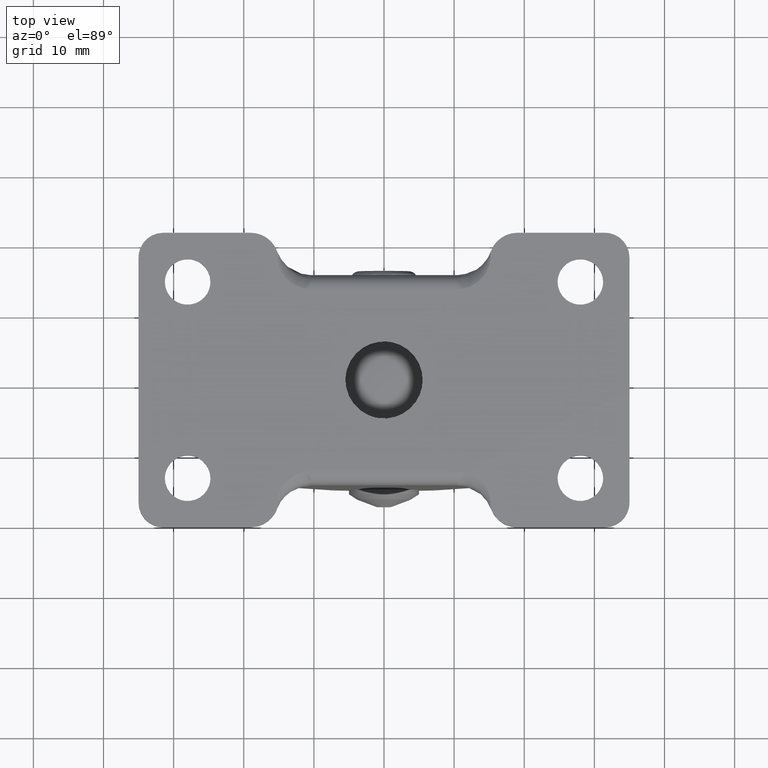
[diagram: clean part render]
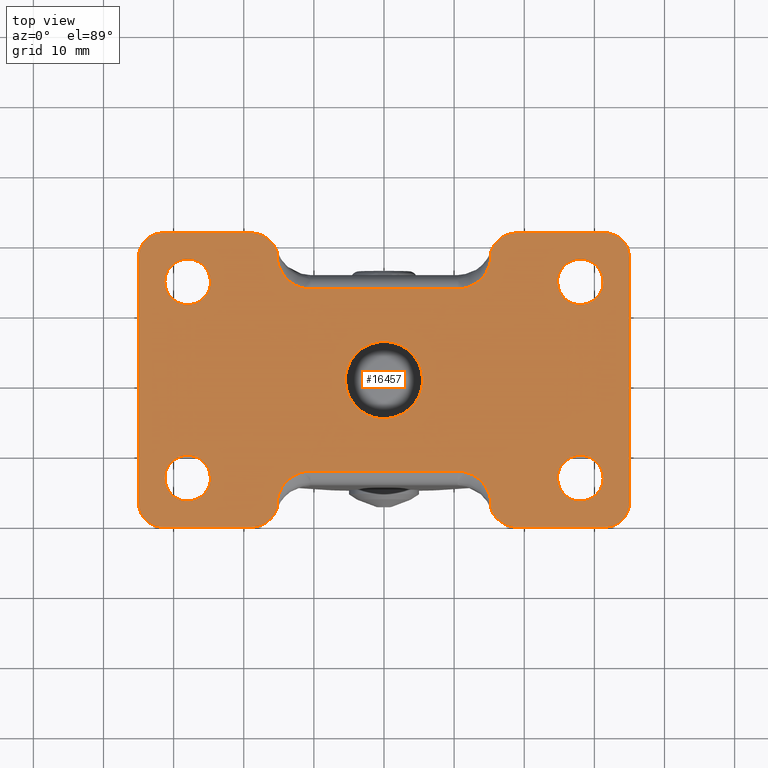
[diagram: same view with one face highlighted and labeled with its STEP entity id]
A machine part, top view. The second image highlights one B-rep face of the part: STEP entity #16457.
In plain terms, the highlighted face is a freeform B-spline surface patch.
Its self-contained STEP definition (entity closure, byte-faithful):
#11022=CARTESIAN_POINT('',(-28.383611263007861,10.772719039362290,54.500000000000000));
#11023=VERTEX_POINT('',#11022);
#11029=CARTESIAN_POINT('',(-24.750000000000000,13.999999999999821,54.500000000000000));
#11030=VERTEX_POINT('',#11029);
#11031=CARTESIAN_POINT('',(-28.383611263007857,10.772719039362284,54.500000000000000));
#11032=CARTESIAN_POINT('',(-28.192478389246045,10.749999999999819,54.500000000000007));
#11033=CARTESIAN_POINT('',(-28.0,10.749999999999821,54.500000000000000));
#11034=CARTESIAN_POINT('',(-24.750000000000000,10.749999999999821,54.500000000000000));
#11035=CARTESIAN_POINT('',(-24.750000000000000,13.999999999999821,54.500000000000000));
#11043=(BOUNDED_CURVE()B_SPLINE_CURVE(2,(#11031,#11032,#11033,#11034,#11035),.UNSPECIFIED.,.F.,.U.)B_SPLINE_CURVE_WITH_KNOTS((3,2,3),(0.229562473476538,0.250000000000000,0.500000000000000),.UNSPECIFIED.)CURVE()GEOMETRIC_REPRESENTATION_ITEM()RATIONAL_B_SPLINE_CURVE((0.956026754111235,0.976055948287831,1.0,0.707106781186547,1.0))REPRESENTATION_ITEM(''));
#11044=EDGE_CURVE('',#11023,#11030,#11043,.T.);
#11046=CARTESIAN_POINT('',(-27.801592246378259,17.243938094862731,54.499999999999993));
#11047=VERTEX_POINT('',#11046);
#11048=CARTESIAN_POINT('',(-24.750000000000000,13.999999999999821,54.500000000000000));
#11049=CARTESIAN_POINT('',(-24.750000000000004,17.057294717191322,54.500000000000014));
#11050=CARTESIAN_POINT('',(-27.801592246378263,17.243938094862724,54.499999999999986));
#11058=(BOUNDED_CURVE()B_SPLINE_CURVE(2,(#11048,#11049,#11050),.UNSPECIFIED.,.F.,.U.)B_SPLINE_CURVE_WITH_KNOTS((3,3),(0.500000000000000,0.739332962227772),.UNSPECIFIED.)CURVE()GEOMETRIC_REPRESENTATION_ITEM()RATIONAL_B_SPLINE_CURVE((1.0,0.719603993299798,0.976072041642776))REPRESENTATION_ITEM(''));
#11059=EDGE_CURVE('',#11030,#11047,#11058,.T.);
#11133=CARTESIAN_POINT('',(-31.250000000000000,13.999999999999821,54.500000000000000));
#11134=VERTEX_POINT('',#11133);
#11135=CARTESIAN_POINT('',(-27.801592246378259,17.243938094862727,54.500000000000000));
#11136=CARTESIAN_POINT('',(-27.900703519145754,17.249999999999819,54.500000000000000));
#11137=CARTESIAN_POINT('',(-28.0,17.249999999999819,54.500000000000000));
#11138=CARTESIAN_POINT('',(-31.250000000000004,17.249999999999826,54.500000000000000));
#11139=CARTESIAN_POINT('',(-31.250000000000000,13.999999999999821,54.500000000000000));
#11147=(BOUNDED_CURVE()B_SPLINE_CURVE(2,(#11135,#11136,#11137,#11138,#11139),.UNSPECIFIED.,.F.,.U.)B_SPLINE_CURVE_WITH_KNOTS((3,2,3),(0.739332962227771,0.750000000000000,1.0),.UNSPECIFIED.)CURVE()GEOMETRIC_REPRESENTATION_ITEM()RATIONAL_B_SPLINE_CURVE((0.976072041642775,0.987502787886749,1.0,0.707106781186547,1.0))REPRESENTATION_ITEM(''));
#11148=EDGE_CURVE('',#11047,#11134,#11147,.T.);
#11150=CARTESIAN_POINT('',(-31.250000000000000,13.999999999999821,54.500000000000000));
#11151=CARTESIAN_POINT('',(-31.250000000000004,11.113432791330514,54.500000000000007));
#11152=CARTESIAN_POINT('',(-28.383611263007857,10.772719039362283,54.500000000000000));
#11160=(BOUNDED_CURVE()B_SPLINE_CURVE(2,(#11150,#11151,#11152),.UNSPECIFIED.,.F.,.U.)B_SPLINE_CURVE_WITH_KNOTS((3,3),(0.0,0.229562473476538),.UNSPECIFIED.)CURVE()GEOMETRIC_REPRESENTATION_ITEM()RATIONAL_B_SPLINE_CURVE((1.0,0.731050832898716,0.956026754111236))REPRESENTATION_ITEM(''));
#11161=EDGE_CURVE('',#11134,#11023,#11160,.T.);
#11208=CARTESIAN_POINT('',(-0.649186825423590,-5.461552569159640,54.500000000000000));
#11209=VERTEX_POINT('',#11208);
#11215=CARTESIAN_POINT('',(5.500000000000000,0.0,54.500000000000000));
#11216=VERTEX_POINT('',#11215);
#11217=CARTESIAN_POINT('',(-0.649186825423590,-5.461552569159640,54.500000000000000));
#11218=CARTESIAN_POINT('',(-0.325731917746351,-5.500000000000000,54.500000000000007));
#11219=CARTESIAN_POINT('',(0.0,-5.500000000000000,54.500000000000000));
#11220=CARTESIAN_POINT('',(5.500000000000001,-5.500000000000001,54.500000000000014));
#11221=CARTESIAN_POINT('',(5.500000000000000,0.0,54.500000000000000));
#11229=(BOUNDED_CURVE()B_SPLINE_CURVE(2,(#11217,#11218,#11219,#11220,#11221),.UNSPECIFIED.,.F.,.U.)B_SPLINE_CURVE_WITH_KNOTS((3,2,3),(0.229562518854701,0.250000000000000,0.500000000000000),.UNSPECIFIED.)CURVE()GEOMETRIC_REPRESENTATION_ITEM()RATIONAL_B_SPLINE_CURVE((0.956026843054312,0.976056001451657,1.0,0.707106781186548,1.0))REPRESENTATION_ITEM(''));
#11230=EDGE_CURVE('',#11209,#11216,#11229,.T.);
#11232=CARTESIAN_POINT('',(0.335766967672044,5.489741391306180,54.500000000000000));
#11233=VERTEX_POINT('',#11232);
#11234=CARTESIAN_POINT('',(5.500000000000000,0.0,54.500000000000000));
#11235=CARTESIAN_POINT('',(5.500000000000000,5.173883367546367,54.500000000000000));
#11236=CARTESIAN_POINT('',(0.335766967672044,5.489741391306181,54.500000000000000));
#11244=(BOUNDED_CURVE()B_SPLINE_CURVE(2,(#11234,#11235,#11236),.UNSPECIFIED.,.F.,.U.)B_SPLINE_CURVE_WITH_KNOTS((3,3),(0.500000000000000,0.739332962227490),.UNSPECIFIED.)CURVE()GEOMETRIC_REPRESENTATION_ITEM()RATIONAL_B_SPLINE_CURVE((1.0,0.719603993300128,0.976072041642172))REPRESENTATION_ITEM(''));
#11245=EDGE_CURVE('',#11216,#11233,#11244,.T.);
#11319=CARTESIAN_POINT('',(-5.500000000000000,0.0,54.500000000000000));
#11320=VERTEX_POINT('',#11319);
#11321=CARTESIAN_POINT('',(0.335766967672044,5.489741391306180,54.499999999999993));
#11322=CARTESIAN_POINT('',(0.168040198373216,5.500000000000001,54.500000000000000));
#11323=CARTESIAN_POINT('',(0.0,5.500000000000000,54.500000000000000));
#11324=CARTESIAN_POINT('',(-5.500000000000001,5.500000000000001,54.500000000000014));
#11325=CARTESIAN_POINT('',(-5.500000000000000,0.0,54.500000000000000));
#11333=(BOUNDED_CURVE()B_SPLINE_CURVE(2,(#11321,#11322,#11323,#11324,#11325),.UNSPECIFIED.,.F.,.U.)B_SPLINE_CURVE_WITH_KNOTS((3,2,3),(0.739332962227489,0.750000000000000,1.0),.UNSPECIFIED.)CURVE()GEOMETRIC_REPRESENTATION_ITEM()RATIONAL_B_SPLINE_CURVE((0.976072041642171,0.987502787886419,1.0,0.707106781186548,1.0))REPRESENTATION_ITEM(''));
#11334=EDGE_CURVE('',#11233,#11320,#11333,.T.);
#11336=CARTESIAN_POINT('',(-5.500000000000000,0.0,54.500000000000000));
#11337=CARTESIAN_POINT('',(-5.500000000000001,-4.884961212462393,54.500000000000000));
#11338=CARTESIAN_POINT('',(-0.649186825423590,-5.461552569159640,54.500000000000000));
#11346=(BOUNDED_CURVE()B_SPLINE_CURVE(2,(#11336,#11337,#11338),.UNSPECIFIED.,.F.,.U.)B_SPLINE_CURVE_WITH_KNOTS((3,3),(0.0,0.229562518854701),.UNSPECIFIED.)CURVE()GEOMETRIC_REPRESENTATION_ITEM()RATIONAL_B_SPLINE_CURVE((1.0,0.731050779734891,0.956026843054312))REPRESENTATION_ITEM(''));
#11347=EDGE_CURVE('',#11320,#11209,#11346,.T.);
#11394=CARTESIAN_POINT('',(27.616388736992150,10.772719039362290,54.500000000000000));
#11395=VERTEX_POINT('',#11394);
#11401=CARTESIAN_POINT('',(31.250000000000000,13.999999999999821,54.500000000000000));
#11402=VERTEX_POINT('',#11401);
#11403=CARTESIAN_POINT('',(27.616388736992150,10.772719039362288,54.500000000000000));
#11404=CARTESIAN_POINT('',(27.807521610753962,10.749999999999815,54.500000000000007));
#11405=CARTESIAN_POINT('',(28.0,10.749999999999821,54.500000000000000));
#11406=CARTESIAN_POINT('',(31.250000000000004,10.749999999999821,54.500000000000000));
#11407=CARTESIAN_POINT('',(31.250000000000000,13.999999999999821,54.500000000000000));
#11415=(BOUNDED_CURVE()B_SPLINE_CURVE(2,(#11403,#11404,#11405,#11406,#11407),.UNSPECIFIED.,.F.,.U.)B_SPLINE_CURVE_WITH_KNOTS((3,2,3),(0.229562473476538,0.250000000000000,0.500000000000000),.UNSPECIFIED.)CURVE()GEOMETRIC_REPRESENTATION_ITEM()RATIONAL_B_SPLINE_CURVE((0.956026754111236,0.976055948287832,1.0,0.707106781186547,1.0))REPRESENTATION_ITEM(''));
#11416=EDGE_CURVE('',#11395,#11402,#11415,.T.);
#11418=CARTESIAN_POINT('',(28.198407753621741,17.243938094862731,54.500000000000000));
#11419=VERTEX_POINT('',#11418);
#11420=CARTESIAN_POINT('',(31.250000000000000,13.999999999999821,54.500000000000000));
#11421=CARTESIAN_POINT('',(31.249999999999993,17.057294717191322,54.500000000000014));
#11422=CARTESIAN_POINT('',(28.198407753621744,17.243938094862724,54.500000000000000));
#11430=(BOUNDED_CURVE()B_SPLINE_CURVE(2,(#11420,#11421,#11422),.UNSPECIFIED.,.F.,.U.)B_SPLINE_CURVE_WITH_KNOTS((3,3),(0.500000000000000,0.739332962227772),.UNSPECIFIED.)CURVE()GEOMETRIC_REPRESENTATION_ITEM()RATIONAL_B_SPLINE_CURVE((1.0,0.719603993299798,0.976072041642776))REPRESENTATION_ITEM(''));
#11431=EDGE_CURVE('',#11402,#11419,#11430,.T.);
#11505=CARTESIAN_POINT('',(24.750000000000000,13.999999999999821,54.500000000000000));
#11506=VERTEX_POINT('',#11505);
#11507=CARTESIAN_POINT('',(28.198407753621744,17.243938094862731,54.500000000000000));
#11508=CARTESIAN_POINT('',(28.099296480854242,17.249999999999822,54.500000000000000));
#11509=CARTESIAN_POINT('',(28.0,17.249999999999819,54.500000000000000));
#11510=CARTESIAN_POINT('',(24.750000000000000,17.249999999999826,54.500000000000000));
#11511=CARTESIAN_POINT('',(24.750000000000000,13.999999999999821,54.500000000000000));
#11519=(BOUNDED_CURVE()B_SPLINE_CURVE(2,(#11507,#11508,#11509,#11510,#11511),.UNSPECIFIED.,.F.,.U.)B_SPLINE_CURVE_WITH_KNOTS((3,2,3),(0.739332962227771,0.750000000000000,1.0),.UNSPECIFIED.)CURVE()GEOMETRIC_REPRESENTATION_ITEM()RATIONAL_B_SPLINE_CURVE((0.976072041642774,0.987502787886749,1.0,0.707106781186547,1.0))REPRESENTATION_ITEM(''));
#11520=EDGE_CURVE('',#11419,#11506,#11519,.T.);
#11522=CARTESIAN_POINT('',(24.750000000000000,13.999999999999821,54.500000000000000));
#11523=CARTESIAN_POINT('',(24.750000000000004,11.113432791330514,54.500000000000007));
#11524=CARTESIAN_POINT('',(27.616388736992146,10.772719039362292,54.499999999999993));
#11532=(BOUNDED_CURVE()B_SPLINE_CURVE(2,(#11522,#11523,#11524),.UNSPECIFIED.,.F.,.U.)B_SPLINE_CURVE_WITH_KNOTS((3,3),(0.0,0.229562473476538),.UNSPECIFIED.)CURVE()GEOMETRIC_REPRESENTATION_ITEM()RATIONAL_B_SPLINE_CURVE((1.0,0.731050832898716,0.956026754111236))REPRESENTATION_ITEM(''));
#11533=EDGE_CURVE('',#11506,#11395,#11532,.T.);
#11580=CARTESIAN_POINT('',(27.616388736992150,-17.227280960637529,54.500000000000000));
#11581=VERTEX_POINT('',#11580);
#11587=CARTESIAN_POINT('',(31.250000000000000,-14.0,54.500000000000000));
#11588=VERTEX_POINT('',#11587);
#11589=CARTESIAN_POINT('',(27.616388736992150,-17.227280960637533,54.500000000000000));
#11590=CARTESIAN_POINT('',(27.807521610753966,-17.250000000000000,54.499999999999993));
#11591=CARTESIAN_POINT('',(28.0,-17.250000000000000,54.500000000000000));
#11592=CARTESIAN_POINT('',(31.250000000000004,-17.249999999999996,54.500000000000000));
#11593=CARTESIAN_POINT('',(31.250000000000000,-14.0,54.500000000000000));
#11601=(BOUNDED_CURVE()B_SPLINE_CURVE(2,(#11589,#11590,#11591,#11592,#11593),.UNSPECIFIED.,.F.,.U.)B_SPLINE_CURVE_WITH_KNOTS((3,2,3),(0.229562473476538,0.250000000000000,0.500000000000000),.UNSPECIFIED.)CURVE()GEOMETRIC_REPRESENTATION_ITEM()RATIONAL_B_SPLINE_CURVE((0.956026754111236,0.976055948287832,1.0,0.707106781186547,1.0))REPRESENTATION_ITEM(''));
#11602=EDGE_CURVE('',#11581,#11588,#11601,.T.);
#11604=CARTESIAN_POINT('',(28.198407753621741,-10.756061905137100,54.500000000000000));
#11605=VERTEX_POINT('',#11604);
#11606=CARTESIAN_POINT('',(31.250000000000000,-14.0,54.500000000000000));
#11607=CARTESIAN_POINT('',(31.249999999999993,-10.942705282808506,54.500000000000014));
#11608=CARTESIAN_POINT('',(28.198407753621744,-10.756061905137095,54.500000000000000));
#11616=(BOUNDED_CURVE()B_SPLINE_CURVE(2,(#11606,#11607,#11608),.UNSPECIFIED.,.F.,.U.)B_SPLINE_CURVE_WITH_KNOTS((3,3),(0.500000000000000,0.739332962227772),.UNSPECIFIED.)CURVE()GEOMETRIC_REPRESENTATION_ITEM()RATIONAL_B_SPLINE_CURVE((1.0,0.719603993299798,0.976072041642776))REPRESENTATION_ITEM(''));
#11617=EDGE_CURVE('',#11588,#11605,#11616,.T.);
#11691=CARTESIAN_POINT('',(24.750000000000000,-14.0,54.500000000000000));
#11692=VERTEX_POINT('',#11691);
#11693=CARTESIAN_POINT('',(28.198407753621744,-10.756061905137093,54.500000000000000));
#11694=CARTESIAN_POINT('',(28.099296480854242,-10.750000000000002,54.500000000000000));
#11695=CARTESIAN_POINT('',(28.0,-10.750000000000000,54.500000000000000));
#11696=CARTESIAN_POINT('',(24.750000000000000,-10.750000000000000,54.500000000000000));
#11697=CARTESIAN_POINT('',(24.750000000000000,-14.0,54.500000000000000));
#11705=(BOUNDED_CURVE()B_SPLINE_CURVE(2,(#11693,#11694,#11695,#11696,#11697),.UNSPECIFIED.,.F.,.U.)B_SPLINE_CURVE_WITH_KNOTS((3,2,3),(0.739332962227771,0.750000000000000,1.0),.UNSPECIFIED.)CURVE()GEOMETRIC_REPRESENTATION_ITEM()RATIONAL_B_SPLINE_CURVE((0.976072041642774,0.987502787886749,1.0,0.707106781186547,1.0))REPRESENTATION_ITEM(''));
#11706=EDGE_CURVE('',#11605,#11692,#11705,.T.);
#11708=CARTESIAN_POINT('',(24.750000000000000,-14.0,54.500000000000000));
#11709=CARTESIAN_POINT('',(24.749999999999996,-16.886567208669312,54.499999999999993));
#11710=CARTESIAN_POINT('',(27.616388736992150,-17.227280960637533,54.500000000000000));
#11718=(BOUNDED_CURVE()B_SPLINE_CURVE(2,(#11708,#11709,#11710),.UNSPECIFIED.,.F.,.U.)B_SPLINE_CURVE_WITH_KNOTS((3,3),(0.0,0.229562473476538),.UNSPECIFIED.)CURVE()GEOMETRIC_REPRESENTATION_ITEM()RATIONAL_B_SPLINE_CURVE((1.0,0.731050832898716,0.956026754111236))REPRESENTATION_ITEM(''));
#11719=EDGE_CURVE('',#11692,#11581,#11718,.T.);
#11766=CARTESIAN_POINT('',(-28.383611263007861,-17.227280960637529,54.500000000000000));
#11767=VERTEX_POINT('',#11766);
#11773=CARTESIAN_POINT('',(-24.750000000000000,-14.0,54.500000000000000));
#11774=VERTEX_POINT('',#11773);
#11775=CARTESIAN_POINT('',(-28.383611263007857,-17.227280960637529,54.500000000000000));
#11776=CARTESIAN_POINT('',(-28.192478389246045,-17.250000000000000,54.499999999999993));
#11777=CARTESIAN_POINT('',(-28.0,-17.250000000000000,54.500000000000000));
#11778=CARTESIAN_POINT('',(-24.750000000000000,-17.249999999999996,54.500000000000000));
#11779=CARTESIAN_POINT('',(-24.750000000000000,-14.0,54.500000000000000));
#11787=(BOUNDED_CURVE()B_SPLINE_CURVE(2,(#11775,#11776,#11777,#11778,#11779),.UNSPECIFIED.,.F.,.U.)B_SPLINE_CURVE_WITH_KNOTS((3,2,3),(0.229562473476538,0.250000000000000,0.500000000000000),.UNSPECIFIED.)CURVE()GEOMETRIC_REPRESENTATION_ITEM()RATIONAL_B_SPLINE_CURVE((0.956026754111235,0.976055948287831,1.0,0.707106781186547,1.0))REPRESENTATION_ITEM(''));
#11788=EDGE_CURVE('',#11767,#11774,#11787,.T.);
#11790=CARTESIAN_POINT('',(-27.801592246378259,-10.756061905137100,54.499999999999993));
#11791=VERTEX_POINT('',#11790);
#11792=CARTESIAN_POINT('',(-24.750000000000000,-14.0,54.500000000000000));
#11793=CARTESIAN_POINT('',(-24.750000000000004,-10.942705282808506,54.500000000000014));
#11794=CARTESIAN_POINT('',(-27.801592246378263,-10.756061905137095,54.499999999999986));
#11802=(BOUNDED_CURVE()B_SPLINE_CURVE(2,(#11792,#11793,#11794),.UNSPECIFIED.,.F.,.U.)B_SPLINE_CURVE_WITH_KNOTS((3,3),(0.500000000000000,0.739332962227772),.UNSPECIFIED.)CURVE()GEOMETRIC_REPRESENTATION_ITEM()RATIONAL_B_SPLINE_CURVE((1.0,0.719603993299798,0.976072041642776))REPRESENTATION_ITEM(''));
#11803=EDGE_CURVE('',#11774,#11791,#11802,.T.);
#11877=CARTESIAN_POINT('',(-31.250000000000000,-14.0,54.500000000000000));
#11878=VERTEX_POINT('',#11877);
#11879=CARTESIAN_POINT('',(-27.801592246378259,-10.756061905137098,54.500000000000000));
#11880=CARTESIAN_POINT('',(-27.900703519145754,-10.750000000000000,54.500000000000000));
#11881=CARTESIAN_POINT('',(-28.0,-10.750000000000000,54.500000000000000));
#11882=CARTESIAN_POINT('',(-31.250000000000004,-10.750000000000000,54.500000000000000));
#11883=CARTESIAN_POINT('',(-31.250000000000000,-14.0,54.500000000000000));
#11891=(BOUNDED_CURVE()B_SPLINE_CURVE(2,(#11879,#11880,#11881,#11882,#11883),.UNSPECIFIED.,.F.,.U.)B_SPLINE_CURVE_WITH_KNOTS((3,2,3),(0.739332962227771,0.750000000000000,1.0),.UNSPECIFIED.)CURVE()GEOMETRIC_REPRESENTATION_ITEM()RATIONAL_B_SPLINE_CURVE((0.976072041642775,0.987502787886749,1.0,0.707106781186547,1.0))REPRESENTATION_ITEM(''));
#11892=EDGE_CURVE('',#11791,#11878,#11891,.T.);
#11894=CARTESIAN_POINT('',(-31.250000000000000,-14.0,54.500000000000000));
#11895=CARTESIAN_POINT('',(-31.250000000000004,-16.886567208669302,54.500000000000007));
#11896=CARTESIAN_POINT('',(-28.383611263007857,-17.227280960637536,54.500000000000000));
#11904=(BOUNDED_CURVE()B_SPLINE_CURVE(2,(#11894,#11895,#11896),.UNSPECIFIED.,.F.,.U.)B_SPLINE_CURVE_WITH_KNOTS((3,3),(0.0,0.229562473476538),.UNSPECIFIED.)CURVE()GEOMETRIC_REPRESENTATION_ITEM()RATIONAL_B_SPLINE_CURVE((1.0,0.731050832898716,0.956026754111236))REPRESENTATION_ITEM(''));
#11905=EDGE_CURVE('',#11878,#11767,#11904,.T.);
#13661=CARTESIAN_POINT('',(-15.228765913306200,18.333339215413350,54.500000000000000));
#13662=VERTEX_POINT('',#13661);
#13690=CARTESIAN_POINT('',(-10.514711081367540,13.0,54.500000000000000));
#13691=VERTEX_POINT('',#13690);
#13692=CARTESIAN_POINT('',(-10.514711081367540,13.0,54.500000000000000));
#13693=CARTESIAN_POINT('',(-11.581971825455341,13.000214138864351,54.500000000000000));
#13694=CARTESIAN_POINT('',(-12.580773533342651,13.499428649971261,54.500000000000000));
#13695=CARTESIAN_POINT('',(-13.540841397550929,13.979283465672310,54.500000000000000));
#13696=CARTESIAN_POINT('',(-14.195327010071420,14.794834309048600,54.500000000000000));
#13697=CARTESIAN_POINT('',(-14.810590144845690,15.561510243346190,54.500000000000000));
#13698=CARTESIAN_POINT('',(-15.079617698688660,16.539096097954811,54.500000000000000));
#13699=CARTESIAN_POINT('',(-15.329726715057991,17.447936226112748,54.500000000000000));
#13700=CARTESIAN_POINT('',(-15.228765913306200,18.333339215413350,54.500000000000000));
#13701=B_SPLINE_CURVE_WITH_KNOTS('',2,(#13692,#13693,#13694,#13695,#13696,#13697,#13698,#13699,#13700),.UNSPECIFIED.,.F.,.U.,(3,2,2,2,3),(0.0,0.250000000000000,0.500000000000000,0.750000000000000,1.0),.UNSPECIFIED.);
#13702=EDGE_CURVE('',#13691,#13662,#13701,.T.);
#13730=CARTESIAN_POINT('',(10.514709999999999,13.0,54.500000000000000));
#13731=VERTEX_POINT('',#13730);
#13753=CARTESIAN_POINT('',(10.514709999999999,13.0,54.500000000000000));
#13754=CARTESIAN_POINT('',(-10.514711081367540,13.0,54.500000000000000));
#13755=QUASI_UNIFORM_CURVE('',1,(#13753,#13754),.UNSPECIFIED.,.F.,.U.);
#13756=EDGE_CURVE('',#13731,#13691,#13755,.T.);
#13787=CARTESIAN_POINT('',(15.228760706250251,18.333348183459801,54.500000000000000));
#13788=VERTEX_POINT('',#13787);
#13789=CARTESIAN_POINT('',(15.228760706250251,18.333348183459801,54.500000000000000));
#13790=CARTESIAN_POINT('',(15.329635687253081,17.448708875707322,54.500000000000007));
#13791=CARTESIAN_POINT('',(15.079614982359850,16.539104090093200,54.500000000000000));
#13792=CARTESIAN_POINT('',(14.811309808526740,15.562978251923850,54.500000000000000));
#13793=CARTESIAN_POINT('',(14.195326207737100,14.794840124324359,54.500000000000000));
#13794=CARTESIAN_POINT('',(13.542195608990760,13.980379293620720,54.500000000000000));
#13795=CARTESIAN_POINT('',(12.580773310062300,13.499431567280499,54.500000000000000));
#13796=CARTESIAN_POINT('',(11.582832560932880,13.000215629756520,54.500000000000000));
#13797=CARTESIAN_POINT('',(10.514709999999999,13.0,54.500000000000000));
#13798=B_SPLINE_CURVE_WITH_KNOTS('',2,(#13789,#13790,#13791,#13792,#13793,#13794,#13795,#13796,#13797),.UNSPECIFIED.,.F.,.U.,(3,2,2,2,3),(0.000000014380785,0.250000000000000,0.500000000000000,0.750000000000000,1.0),.UNSPECIFIED.);
#13799=EDGE_CURVE('',#13788,#13731,#13798,.T.);
#13855=CARTESIAN_POINT('',(-10.514711081367521,-13.0,54.500000000000000));
#13856=VERTEX_POINT('',#13855);
#13866=CARTESIAN_POINT('',(-15.228764935478599,-18.333332562780399,54.500000000000000));
#13867=VERTEX_POINT('',#13866);
#13868=CARTESIAN_POINT('',(-15.228764935478599,-18.333332562780399,54.500000000000000));
#13869=CARTESIAN_POINT('',(-15.329637651343401,-17.448694153979350,54.500000000000000));
#13870=CARTESIAN_POINT('',(-15.079615267566449,-16.539091237617800,54.500000000000000));
#13871=CARTESIAN_POINT('',(-14.811308303795320,-15.562967448061100,54.500000000000000));
#13872=CARTESIAN_POINT('',(-14.195324224741700,-14.794831651059340,54.500000000000000));
#13873=CARTESIAN_POINT('',(-13.542193115301000,-13.980373287025619,54.500000000000000));
#13874=CARTESIAN_POINT('',(-12.580771690475119,-13.499427844222479,54.500000000000000));
#13875=CARTESIAN_POINT('',(-11.582831831504880,-13.000214268396180,54.500000000000000));
#13876=CARTESIAN_POINT('',(-10.514711081367521,-13.0,54.500000000000000));
#13877=B_SPLINE_CURVE_WITH_KNOTS('',2,(#13868,#13869,#13870,#13871,#13872,#13873,#13874,#13875,#13876),.UNSPECIFIED.,.F.,.U.,(3,2,2,2,3),(0.0,0.250000000000000,0.500000000000000,0.750000000000000,1.0),.UNSPECIFIED.);
#13878=EDGE_CURVE('',#13867,#13856,#13877,.T.);
#13921=CARTESIAN_POINT('',(10.514709999999999,-13.0,54.500000000000000));
#13922=VERTEX_POINT('',#13921);
#13936=CARTESIAN_POINT('',(-10.514711081367521,-13.0,54.500000000000000));
#13937=CARTESIAN_POINT('',(10.514709999999999,-13.0,54.500000000000000));
#13938=QUASI_UNIFORM_CURVE('',1,(#13936,#13937),.UNSPECIFIED.,.F.,.U.);
#13939=EDGE_CURVE('',#13856,#13922,#13938,.T.);
#13976=CARTESIAN_POINT('',(15.228760485757951,-18.333348261415651,54.500000000000000));
#13977=VERTEX_POINT('',#13976);
#14003=CARTESIAN_POINT('',(10.514709999999999,-13.0,54.500000000000000));
#14004=CARTESIAN_POINT('',(11.581971513306099,-13.000215455932620,54.500000000000000));
#14005=CARTESIAN_POINT('',(12.580773310062540,-13.499431567280720,54.500000000000000));
#14006=CARTESIAN_POINT('',(13.540841265657040,-13.979287924145799,54.500000000000000));
#14007=CARTESIAN_POINT('',(14.195326207737541,-14.794840124324679,54.500000000000000));
#14008=CARTESIAN_POINT('',(14.810588713461300,-15.561517335622350,54.500000000000000));
#14009=CARTESIAN_POINT('',(15.079614982360299,-16.539104090093801,54.500000000000000));
#14010=CARTESIAN_POINT('',(15.329722805398101,-17.447945059386949,54.500000000000000));
#14011=CARTESIAN_POINT('',(15.228760485757951,-18.333348261415651,54.500000000000000));
#14012=B_SPLINE_CURVE_WITH_KNOTS('',2,(#14003,#14004,#14005,#14006,#14007,#14008,#14009,#14010,#14011),.UNSPECIFIED.,.F.,.U.,(3,2,2,2,3),(0.0,0.250000000000000,0.500000000000000,0.750000000000000,1.0),.UNSPECIFIED.);
#14013=EDGE_CURVE('',#13922,#13977,#14012,.T.);
#15336=CARTESIAN_POINT('',(18.989575114206499,-21.0,54.500000000000000));
#15337=VERTEX_POINT('',#15336);
#15343=CARTESIAN_POINT('',(15.228760485757951,-18.333348261415651,54.500000000000000));
#15344=CARTESIAN_POINT('',(16.168967375558246,-20.992651369762061,54.499999999999993));
#15345=CARTESIAN_POINT('',(18.989575114206499,-21.0,54.500000000000000));
#15353=(BOUNDED_CURVE()B_SPLINE_CURVE(2,(#15343,#15344,#15345),.UNSPECIFIED.,.F.,.U.)CURVE()GEOMETRIC_REPRESENTATION_ITEM()QUASI_UNIFORM_CURVE()RATIONAL_B_SPLINE_CURVE((1.0,0.817248079286618,1.0))REPRESENTATION_ITEM(''));
#15354=EDGE_CURVE('',#13977,#15337,#15353,.T.);
#15373=CARTESIAN_POINT('',(-19.0,-21.0,54.500000000000000));
#15374=VERTEX_POINT('',#15373);
#15382=CARTESIAN_POINT('',(-19.0,-21.0,54.500000000000000));
#15383=CARTESIAN_POINT('',(-16.171573216614878,-20.999999784059309,54.500000000000000));
#15384=CARTESIAN_POINT('',(-15.228764935478599,-18.333332562780399,54.500000000000000));
#15392=(BOUNDED_CURVE()B_SPLINE_CURVE(2,(#15382,#15383,#15384),.UNSPECIFIED.,.F.,.U.)CURVE()GEOMETRIC_REPRESENTATION_ITEM()QUASI_UNIFORM_CURVE()RATIONAL_B_SPLINE_CURVE((1.0,0.816496555003584,1.0))REPRESENTATION_ITEM(''));
#15393=EDGE_CURVE('',#15374,#13867,#15392,.T.);
#15485=CARTESIAN_POINT('',(18.989575114143950,21.0,54.500000000000000));
#15486=VERTEX_POINT('',#15485);
#15487=CARTESIAN_POINT('',(18.989575114143950,20.999999999999979,54.500000000000000));
#15488=CARTESIAN_POINT('',(16.168967375542664,20.992651369717915,54.500000000000007));
#15489=CARTESIAN_POINT('',(15.228760706250270,18.333348183459790,54.500000000000000));
#15497=(BOUNDED_CURVE()B_SPLINE_CURVE(2,(#15487,#15488,#15489),.UNSPECIFIED.,.F.,.U.)CURVE()GEOMETRIC_REPRESENTATION_ITEM()QUASI_UNIFORM_CURVE()RATIONAL_B_SPLINE_CURVE((1.0,0.817248079291126,1.0))REPRESENTATION_ITEM(''));
#15498=EDGE_CURVE('',#15486,#13788,#15497,.T.);
#15524=CARTESIAN_POINT('',(-19.0,21.0,54.500000000000000));
#15525=VERTEX_POINT('',#15524);
#15531=CARTESIAN_POINT('',(-15.228765913306241,18.333339215413339,54.500000000000000));
#15532=CARTESIAN_POINT('',(-16.171577554418512,21.0,54.500000000000000));
#15533=CARTESIAN_POINT('',(-19.0,21.0,54.500000000000000));
#15541=(BOUNDED_CURVE()B_SPLINE_CURVE(2,(#15531,#15532,#15533),.UNSPECIFIED.,.F.,.U.)CURVE()GEOMETRIC_REPRESENTATION_ITEM()QUASI_UNIFORM_CURVE()RATIONAL_B_SPLINE_CURVE((1.0,0.816497031180559,1.0))REPRESENTATION_ITEM(''));
#15542=EDGE_CURVE('',#13662,#15525,#15541,.T.);
#15766=CARTESIAN_POINT('',(-31.500000000000000,-21.0,54.500000000000000));
#15767=VERTEX_POINT('',#15766);
#15768=CARTESIAN_POINT('',(-19.0,-21.0,54.500000000000000));
#15769=CARTESIAN_POINT('',(-31.500000000000000,-21.0,54.500000000000000));
#15770=QUASI_UNIFORM_CURVE('',1,(#15768,#15769),.UNSPECIFIED.,.F.,.U.);
#15771=EDGE_CURVE('',#15374,#15767,#15770,.T.);
#16027=CARTESIAN_POINT('',(-31.499998900442598,21.0,54.500000000000000));
#16028=VERTEX_POINT('',#16027);
#16035=CARTESIAN_POINT('',(-35.0,17.500000000000000,54.500000000000000));
#16036=VERTEX_POINT('',#16035);
#16042=CARTESIAN_POINT('',(-31.499998900442598,21.0,54.500000000000000));
#16043=CARTESIAN_POINT('',(-32.949746690801277,21.000000455451517,54.500000000000000));
#16044=CARTESIAN_POINT('',(-33.974873345400631,19.974874122905138,54.500000000000000));
#16045=CARTESIAN_POINT('',(-35.0,18.949747790358749,54.500000000000000));
#16046=CARTESIAN_POINT('',(-35.0,17.500000000000000,54.500000000000000));
#16054=(BOUNDED_CURVE()B_SPLINE_CURVE(2,(#16042,#16043,#16044,#16045,#16046),.UNSPECIFIED.,.F.,.U.)B_SPLINE_CURVE_WITH_KNOTS((3,2,3),(0.0,0.500000000000000,1.0),.UNSPECIFIED.)CURVE()GEOMETRIC_REPRESENTATION_ITEM()RATIONAL_B_SPLINE_CURVE((1.0,0.923879502455398,1.0,0.923879502455398,1.0))REPRESENTATION_ITEM(''));
#16055=EDGE_CURVE('',#16028,#16036,#16054,.T.);
#16074=CARTESIAN_POINT('',(-35.0,-17.499998778269600,54.500000000000000));
#16075=VERTEX_POINT('',#16074);
#16083=CARTESIAN_POINT('',(-35.0,-17.499998778269600,54.500000000000000));
#16084=CARTESIAN_POINT('',(-35.000000506057212,-18.949746604411910,54.500000000000007));
#16085=CARTESIAN_POINT('',(-33.974874166099802,-19.974873302205960,54.500000000000000));
#16086=CARTESIAN_POINT('',(-32.949747826142392,-21.0,54.500000000000007));
#16087=CARTESIAN_POINT('',(-31.500000000000000,-21.0,54.500000000000000));
#16095=(BOUNDED_CURVE()B_SPLINE_CURVE(2,(#16083,#16084,#16085,#16086,#16087),.UNSPECIFIED.,.F.,.U.)B_SPLINE_CURVE_WITH_KNOTS((3,2,3),(0.0,0.500000000000000,1.0),.UNSPECIFIED.)CURVE()GEOMETRIC_REPRESENTATION_ITEM()RATIONAL_B_SPLINE_CURVE((1.0,0.923879499115856,1.0,0.923879499115856,1.0))REPRESENTATION_ITEM(''));
#16096=EDGE_CURVE('',#16075,#15767,#16095,.T.);
#16115=CARTESIAN_POINT('',(31.500000000000000,-21.0,54.500000000000000));
#16116=VERTEX_POINT('',#16115);
#16123=CARTESIAN_POINT('',(35.0,-17.500000000000000,54.500000000000000));
#16124=VERTEX_POINT('',#16123);
#16130=CARTESIAN_POINT('',(31.500000000000000,-21.0,54.500000000000000));
#16131=CARTESIAN_POINT('',(35.0,-21.000000000000007,54.500000000000000));
#16132=CARTESIAN_POINT('',(35.0,-17.500000000000000,54.500000000000000));
#16140=(BOUNDED_CURVE()B_SPLINE_CURVE(2,(#16130,#16131,#16132),.UNSPECIFIED.,.F.,.U.)CURVE()GEOMETRIC_REPRESENTATION_ITEM()QUASI_UNIFORM_CURVE()RATIONAL_B_SPLINE_CURVE((1.0,0.707106781186547,1.0))REPRESENTATION_ITEM(''));
#16141=EDGE_CURVE('',#16116,#16124,#16140,.T.);
#16160=CARTESIAN_POINT('',(35.0,17.500000000000000,54.500000000000000));
#16161=VERTEX_POINT('',#16160);
#16168=CARTESIAN_POINT('',(31.500000000000000,21.0,54.500000000000000));
#16169=VERTEX_POINT('',#16168);
#16175=CARTESIAN_POINT('',(35.0,17.500000000000000,54.500000000000000));
#16176=CARTESIAN_POINT('',(35.0,21.000000000000007,54.500000000000000));
#16177=CARTESIAN_POINT('',(31.500000000000000,21.0,54.500000000000000));
#16185=(BOUNDED_CURVE()B_SPLINE_CURVE(2,(#16175,#16176,#16177),.UNSPECIFIED.,.F.,.U.)CURVE()GEOMETRIC_REPRESENTATION_ITEM()QUASI_UNIFORM_CURVE()RATIONAL_B_SPLINE_CURVE((1.0,0.707106781186547,1.0))REPRESENTATION_ITEM(''));
#16186=EDGE_CURVE('',#16161,#16169,#16185,.T.);
#16198=CARTESIAN_POINT('',(-35.0,-17.499998778269600,54.500000000000000));
#16199=CARTESIAN_POINT('',(-35.0,17.500000000000000,54.500000000000000));
#16200=QUASI_UNIFORM_CURVE('',1,(#16198,#16199),.UNSPECIFIED.,.F.,.U.);
#16201=EDGE_CURVE('',#16075,#16036,#16200,.T.);
#16214=CARTESIAN_POINT('',(35.0,17.500000000000000,54.500000000000000));
#16215=CARTESIAN_POINT('',(35.0,-17.500000000000000,54.500000000000000));
#16216=QUASI_UNIFORM_CURVE('',1,(#16214,#16215),.UNSPECIFIED.,.F.,.U.);
#16217=EDGE_CURVE('',#16161,#16124,#16216,.T.);
#16229=CARTESIAN_POINT('',(18.989575114143950,21.0,54.500000000000000));
#16230=CARTESIAN_POINT('',(31.500000000000000,21.0,54.500000000000000));
#16231=QUASI_UNIFORM_CURVE('',1,(#16229,#16230),.UNSPECIFIED.,.F.,.U.);
#16232=EDGE_CURVE('',#15486,#16169,#16231,.T.);
#16253=CARTESIAN_POINT('',(-31.499998900442598,21.0,54.500000000000000));
#16254=CARTESIAN_POINT('',(-19.0,21.0,54.500000000000000));
#16255=QUASI_UNIFORM_CURVE('',1,(#16253,#16254),.UNSPECIFIED.,.F.,.U.);
#16256=EDGE_CURVE('',#16028,#15525,#16255,.T.);
#16332=CARTESIAN_POINT('',(31.500000000000000,-21.0,54.500000000000000));
#16333=CARTESIAN_POINT('',(18.989575114206499,-21.0,54.500000000000000));
#16334=QUASI_UNIFORM_CURVE('',1,(#16332,#16333),.UNSPECIFIED.,.F.,.U.);
#16335=EDGE_CURVE('',#16116,#15337,#16334,.T.);
#16400=CARTESIAN_POINT('',(-38.496499864326417,23.097899918595861,54.500000000000000));
#16401=CARTESIAN_POINT('',(38.496501741872727,23.097899918595861,54.500000000000000));
#16402=CARTESIAN_POINT('',(-38.496499864326417,-23.097901045123638,54.500000000000000));
#16403=CARTESIAN_POINT('',(38.496501741872727,-23.097901045123638,54.500000000000000));
#16404=B_SPLINE_SURFACE_WITH_KNOTS('',1,1,((#16400,#16402),(#16401,#16403)),.UNSPECIFIED.,.F.,.F.,.U.,(2,2),(2,2),(0.0,76.993001606199158),(0.0,46.195800963719492),.UNSPECIFIED.);
#16405=ORIENTED_EDGE('',*,*,#13756,.T.);
#16406=ORIENTED_EDGE('',*,*,#13702,.T.);
#16407=ORIENTED_EDGE('',*,*,#15542,.T.);
#16408=ORIENTED_EDGE('',*,*,#16256,.F.);
#16409=ORIENTED_EDGE('',*,*,#16055,.T.);
#16410=ORIENTED_EDGE('',*,*,#16201,.F.);
#16411=ORIENTED_EDGE('',*,*,#16096,.T.);
#16412=ORIENTED_EDGE('',*,*,#15771,.F.);
#16413=ORIENTED_EDGE('',*,*,#15393,.T.);
#16414=ORIENTED_EDGE('',*,*,#13878,.T.);
#16415=ORIENTED_EDGE('',*,*,#13939,.T.);
#16416=ORIENTED_EDGE('',*,*,#14013,.T.);
#16417=ORIENTED_EDGE('',*,*,#15354,.T.);
#16418=ORIENTED_EDGE('',*,*,#16335,.F.);
#16419=ORIENTED_EDGE('',*,*,#16141,.T.);
#16420=ORIENTED_EDGE('',*,*,#16217,.F.);
#16421=ORIENTED_EDGE('',*,*,#16186,.T.);
#16422=ORIENTED_EDGE('',*,*,#16232,.F.);
#16423=ORIENTED_EDGE('',*,*,#15498,.T.);
#16424=ORIENTED_EDGE('',*,*,#13799,.T.);
#16425=EDGE_LOOP('',(#16405,#16406,#16407,#16408,#16409,#16410,#16411,#16412,#16413,#16414,#16415,#16416,#16417,#16418,#16419,#16420,#16421,#16422,#16423,#16424));
#16426=FACE_OUTER_BOUND('',#16425,.T.);
#16427=ORIENTED_EDGE('',*,*,#11803,.F.);
#16428=ORIENTED_EDGE('',*,*,#11788,.F.);
#16429=ORIENTED_EDGE('',*,*,#11905,.F.);
#16430=ORIENTED_EDGE('',*,*,#11892,.F.);
#16431=EDGE_LOOP('',(#16427,#16428,#16429,#16430));
#16432=FACE_BOUND('',#16431,.T.);
#16433=ORIENTED_EDGE('',*,*,#11617,.F.);
#16434=ORIENTED_EDGE('',*,*,#11602,.F.);
#16435=ORIENTED_EDGE('',*,*,#11719,.F.);
#16436=ORIENTED_EDGE('',*,*,#11706,.F.);
#16437=EDGE_LOOP('',(#16433,#16434,#16435,#16436));
#16438=FACE_BOUND('',#16437,.T.);
#16439=ORIENTED_EDGE('',*,*,#11431,.F.);
#16440=ORIENTED_EDGE('',*,*,#11416,.F.);
#16441=ORIENTED_EDGE('',*,*,#11533,.F.);
#16442=ORIENTED_EDGE('',*,*,#11520,.F.);
#16443=EDGE_LOOP('',(#16439,#16440,#16441,#16442));
#16444=FACE_BOUND('',#16443,.T.);
#16445=ORIENTED_EDGE('',*,*,#11245,.F.);
#16446=ORIENTED_EDGE('',*,*,#11230,.F.);
#16447=ORIENTED_EDGE('',*,*,#11347,.F.);
#16448=ORIENTED_EDGE('',*,*,#11334,.F.);
#16449=EDGE_LOOP('',(#16445,#16446,#16447,#16448));
#16450=FACE_BOUND('',#16449,.T.);
#16451=ORIENTED_EDGE('',*,*,#11059,.F.);
#16452=ORIENTED_EDGE('',*,*,#11044,.F.);
#16453=ORIENTED_EDGE('',*,*,#11161,.F.);
#16454=ORIENTED_EDGE('',*,*,#11148,.F.);
#16455=EDGE_LOOP('',(#16451,#16452,#16453,#16454));
#16456=FACE_BOUND('',#16455,.T.);
#16457=ADVANCED_FACE('',(#16426,#16432,#16438,#16444,#16450,#16456),#16404,.F.);